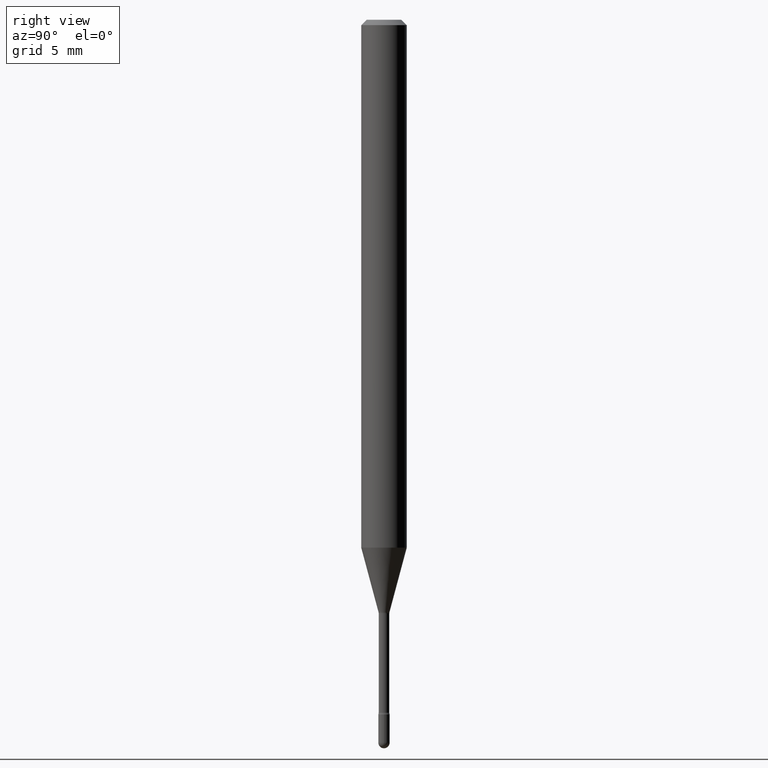
[diagram: clean part render]
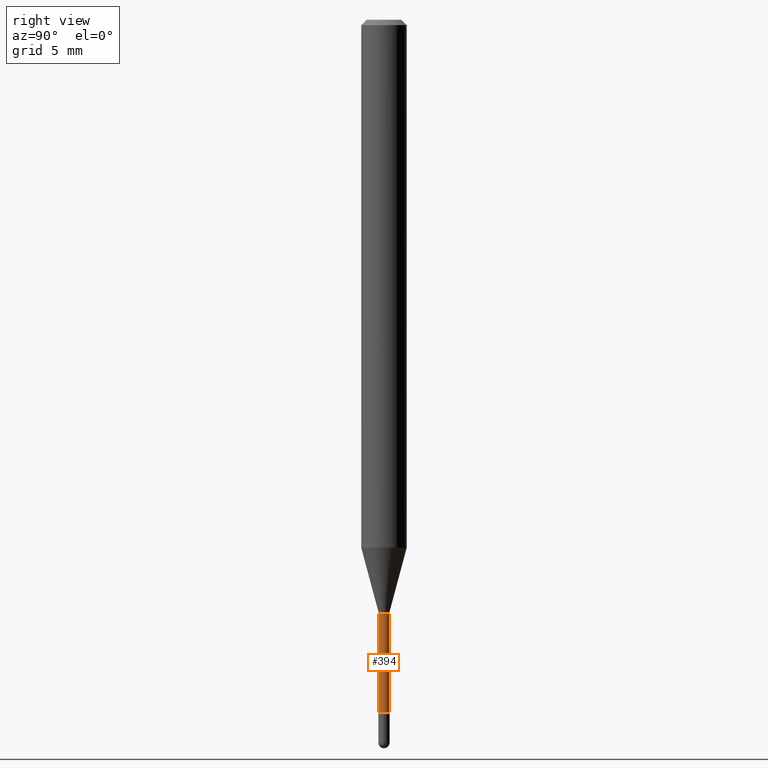
[diagram: same view with one face highlighted and labeled with its STEP entity id]
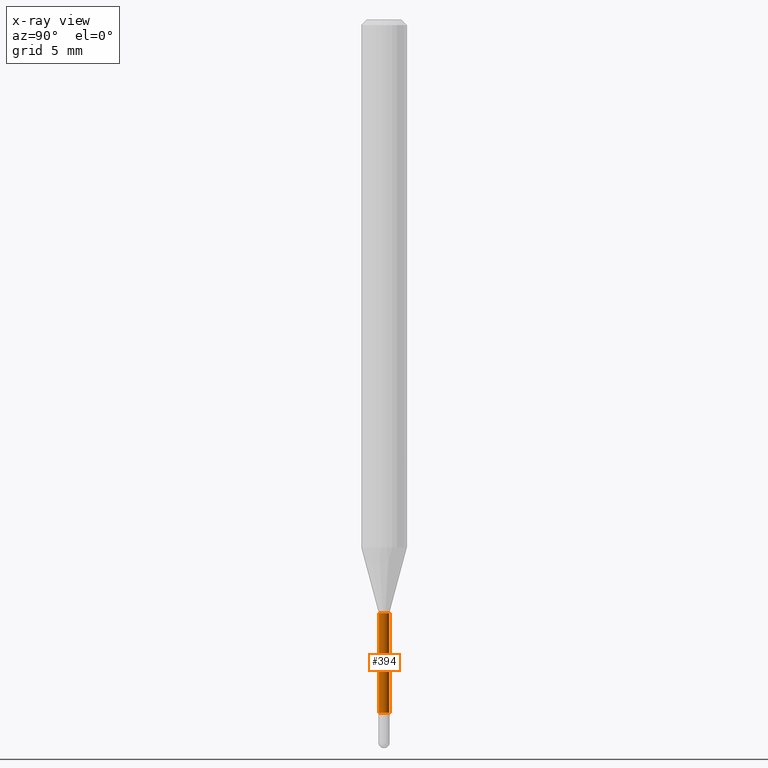
[diagram: x-ray of the same camera — body ghosted, the highlighted face saturated]
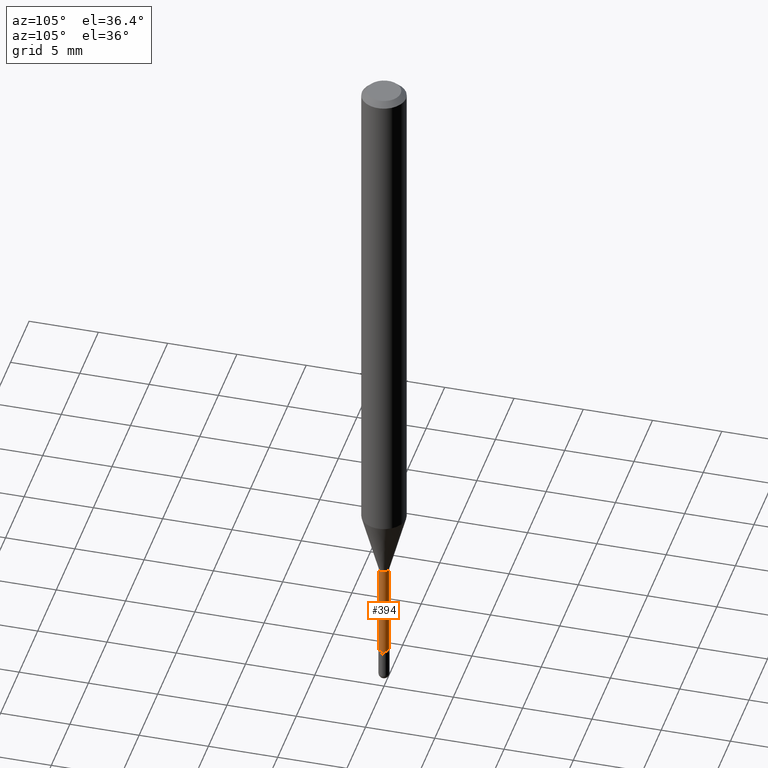
[diagram: same view with one face highlighted and labeled with its STEP entity id]
A machine part, right view. The second image highlights one B-rep face of the part: STEP entity #394.
The next image is the same camera in x-ray: the body ghosted, the highlighted face saturated — about 0% of this face is hidden behind the body in this view.
A second angle (auxiliary view) of the same face is appended — the face is thin or edge-on in the first view.
In plain terms, the highlighted cylindrical surface (edge-blend (fillet) strip) has radius 0.3696 mm, axis along (-0, 0, 1).
Its self-contained STEP definition (entity closure, byte-faithful):
#15 = AXIS2_PLACEMENT_3D ( 'NONE', #460, #63, #97 ) ;
#45 = DIRECTION ( 'NONE',  ( -2.445463809477115105E-29, 3.491488494413427620E-15, 1.000000000000000000 ) ) ;
#53 = CARTESIAN_POINT ( 'NONE',  ( 1.067590460480017694E-16, 0.01454999999999338246, -1.901746667724196316 ) ) ;
#63 = DIRECTION ( 'NONE',  ( -2.445463809477115105E-29, 3.491488494413427226E-15, 1.000000000000000000 ) ) ;
#81 = VERTEX_POINT ( 'NONE', #426 ) ;
#97 = DIRECTION ( 'NONE',  ( -6.982962677686266711E-15, -1.000000000000000000, 3.491488494413426042E-15 ) ) ;
#99 = LINE ( 'NONE', #421, #369 ) ;
#122 = EDGE_CURVE ( 'NONE', #140, #81, #99, .T. ) ;
#139 = DIRECTION ( 'NONE',  ( -2.445463809477115105E-29, 3.491488494413427226E-15, 1.000000000000000000 ) ) ;
#140 = VERTEX_POINT ( 'NONE', #359 ) ;
#155 = EDGE_CURVE ( 'NONE', #250, #317, #161, .T. ) ;
#161 = LINE ( 'NONE', #502, #556 ) ;
#168 = CIRCLE ( 'NONE', #305, 0.01455000000000000217 ) ;
#213 = ORIENTED_EDGE ( 'NONE', *, *, #155, .T. ) ;
#238 = FACE_OUTER_BOUND ( 'NONE', #261, .T. ) ;
#250 = VERTEX_POINT ( 'NONE', #53 ) ;
#258 = CARTESIAN_POINT ( 'NONE',  ( 1.033839680531411352E-16, 0.01454999999999430881, -1.629974787463811081 ) ) ;
#261 = EDGE_LOOP ( 'NONE', ( #387, #213, #291, #277 ) ) ;
#263 = CIRCLE ( 'NONE', #405, 0.01455000000000001951 ) ;
#275 = CYLINDRICAL_SURFACE ( 'NONE', #15, 0.01455000000000001084 ) ;
#277 = ORIENTED_EDGE ( 'NONE', *, *, #122, .F. ) ;
#286 = DIRECTION ( 'NONE',  ( -2.445463809477115105E-29, 3.491488494413427226E-15, 1.000000000000000000 ) ) ;
#291 = ORIENTED_EDGE ( 'NONE', *, *, #545, .F. ) ;
#305 = AXIS2_PLACEMENT_3D ( 'NONE', #489, #139, #428 ) ;
#317 = VERTEX_POINT ( 'NONE', #258 ) ;
#319 = DIRECTION ( 'NONE',  ( -2.445463809477115105E-29, 3.491488494413427620E-15, 1.000000000000000000 ) ) ;
#359 = CARTESIAN_POINT ( 'NONE',  ( -1.016021069602887860E-16, -0.01455000000000666004, -1.901746667724196316 ) ) ;
#369 = VECTOR ( 'NONE', #45, 39.37007874015748143 ) ;
#387 = ORIENTED_EDGE ( 'NONE', *, *, #564, .T. ) ;
#394 = ADVANCED_FACE ( 'NONE', ( #238 ), #275, .T. ) ;
#405 = AXIS2_PLACEMENT_3D ( 'NONE', #542, #286, #452 ) ;
#421 = CARTESIAN_POINT ( 'NONE',  ( -1.016021069603352548E-16, -0.01455000000000001084, 5.288745564849614527E-16 ) ) ;
#426 = CARTESIAN_POINT ( 'NONE',  ( -1.016021069602953434E-16, -0.01455000000000569380, -1.629974787463811081 ) ) ;
#428 = DIRECTION ( 'NONE',  ( -6.982962677686266711E-15, -1.000000000000000000, 0.000000000000000000 ) ) ;
#452 = DIRECTION ( 'NONE',  ( -6.982962677686265922E-15, -1.000000000000000000, 0.000000000000000000 ) ) ;
#460 = CARTESIAN_POINT ( 'NONE',  ( -1.169113584055446105E-44, 1.669184350826100908E-30, 4.780733988912460139E-16 ) ) ;
#489 = CARTESIAN_POINT ( 'NONE',  ( 3.986044353102902760E-29, -5.691038216613867223E-15, -1.629974787463811081 ) ) ;
#502 = CARTESIAN_POINT ( 'NONE',  ( 1.033839680530946418E-16, 0.01455000000000001084, 4.272722412975306737E-16 ) ) ;
#542 = CARTESIAN_POINT ( 'NONE',  ( 4.650652650713222529E-29, -6.639926609648106918E-15, -1.901746667724196316 ) ) ;
#545 = EDGE_CURVE ( 'NONE', #81, #317, #168, .T. ) ;
#556 = VECTOR ( 'NONE', #319, 39.37007874015748143 ) ;
#564 = EDGE_CURVE ( 'NONE', #140, #250, #263, .T. ) ;